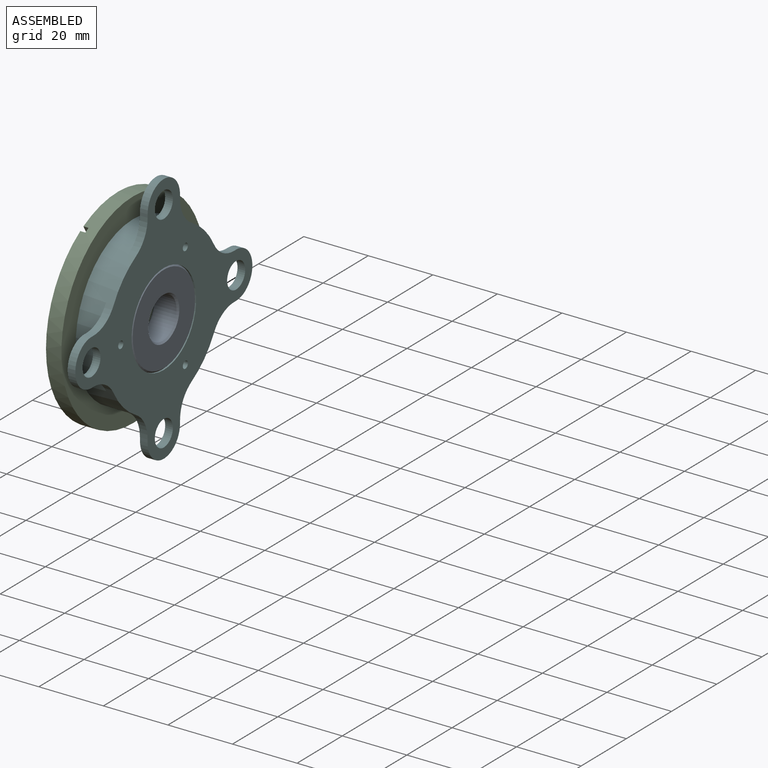
[diagram: assembled view]
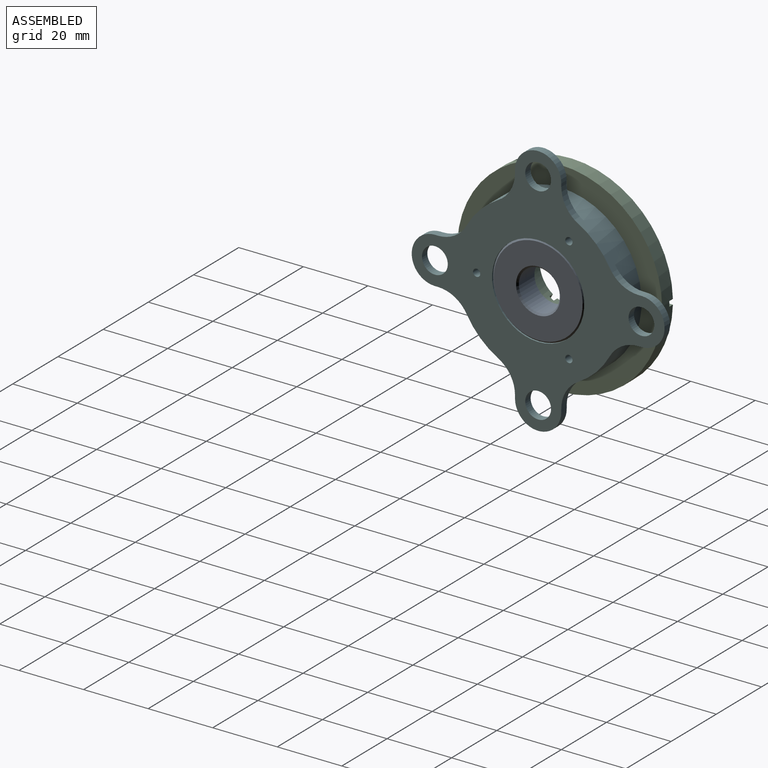
[diagram: assembled view, second angle]
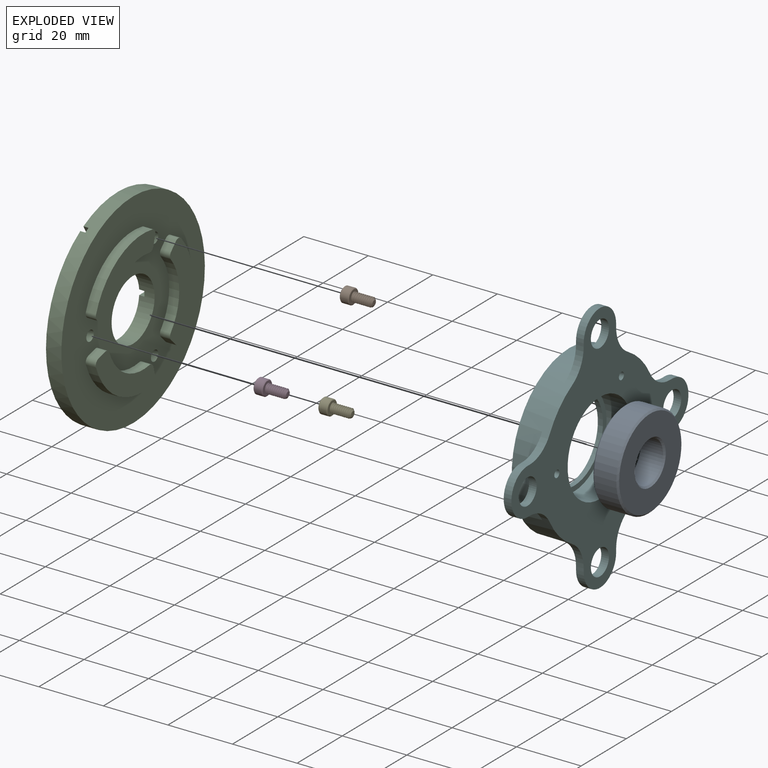
[diagram: exploded view]
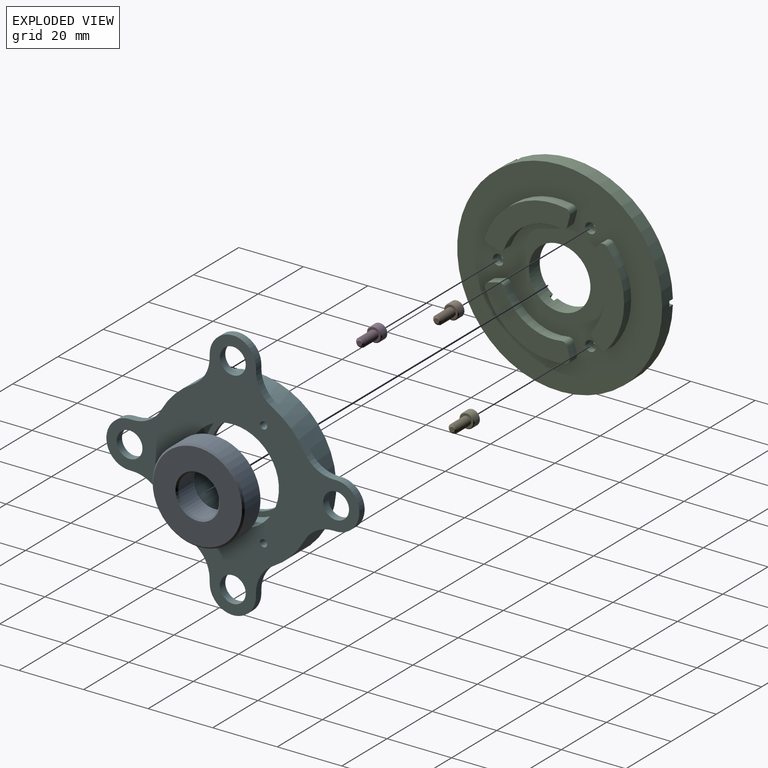
[diagram: exploded view, second angle]
ASSEMBLY  parts=6 mates=6
PART A: 8 faces, bbox 28.6x7.9x28.6 mm
  f0: cylinder r=6.35mm len=12.7mm, axis (0,1,0), area 276.2mm2, adj f4,f5
  f1: cylinder r=14.29mm len=28.58mm, axis (0,1,0), area 621.4mm2, adj f6,f7
  f2: plane 27.56x27.56mm, normal (0,-1,0), area 448.8mm2, adj f4,f6
  f3: plane 27.56x27.56mm, normal (0,1,0), area 448.8mm2, adj f5,f7
  f4: cone r=6.35mm half-angle=45deg, axis (0,-1,0), area 29.8mm2, adj f0,f2
  f5: cone r=6.86mm half-angle=45deg, axis (0,1,0), area 29.8mm2, adj f0,f3
  f6: cone r=13.78mm half-angle=45deg, axis (0,1,0), area 63.3mm2, adj f1,f2
  f7: cone r=14.29mm half-angle=45deg, axis (0,-1,0), area 63.3mm2, adj f1,f3
PART B: 24 faces, bbox 5.2x5.2x9.8 mm
  f0: cylinder r=1.42mm len=5.88mm, axis (0,0,1), area 8.9mm2, adj f1,f20,f21,f23
  f1: plane 4.43x4.43mm, normal (0,0,1), area 9mm2, adj f0,f2,f3,f20,f23
  f2: cylinder r=1.01mm len=6.17mm, axis (0,0,-1), area 3.7mm2, adj f1,f20,f21,f23
  f3: cone r=2.32mm half-angle=45deg, axis (0,0,-1), area 4.6mm2, adj f1,f4
  f4: cylinder r=2.32mm len=4.65mm, axis (0,0,1), area 34.8mm2, adj f3,f5
  f5: cone r=2.09mm half-angle=45deg, axis (0,0,1), area 4.6mm2, adj f4,f6
  f6: plane 4.39x4.39mm, normal (0,0,-1), area 7.8mm2, adj f5,f7,f15,f16,f17,f18,f19
  f7: cone r=1.37mm half-angle=45deg, axis (0,0,-1), area 0mm2, adj f6,f8
  f8: plane 2.31x1.71mm, normal (-0.5,-0.87,0), area 2.3mm2, adj f7,f9,f13,f14
  f9: plane 2.75x2.38mm, normal (0,0,-1), area 4.9mm2, adj f8,f10,f11,f12,f13,f14
  f10: plane 2.31x1.9mm, normal (1,0,0), area 2.3mm2, adj f9,f11,f14,f18
  f11: plane 2.31x1.71mm, normal (0.5,0.87,0), area 2.3mm2, adj f9,f10,f12,f17
  f12: plane 2.31x1.71mm, normal (-0.5,0.87,0), area 2.3mm2, adj f9,f11,f13,f16
  f13: plane 2.31x1.9mm, normal (-1,0,0), area 2.3mm2, adj f8,f9,f12,f15
  f14: plane 2.31x1.71mm, normal (0.5,-0.87,0), area 2.3mm2, adj f8,f9,f10,f19
  f15: cone r=1.37mm half-angle=45deg, axis (0,0,-1), area 0mm2, adj f6,f13
  f16: cone r=1.37mm half-angle=45deg, axis (0,0,-1), area 0mm2, adj f6,f12
  f17: cone r=1.37mm half-angle=45deg, axis (0,0,-1), area 0mm2, adj f6,f11
  f18: cone r=1.37mm half-angle=45deg, axis (0,0,-1), area 0mm2, adj f6,f10
  f19: cone r=1.37mm half-angle=45deg, axis (0,0,-1), area 0mm2, adj f6,f14
  f20: bspline ~6.59x3.29mm, area 34.6mm2, adj f0,f1,f2,f21
  f21: cone r=0.76mm half-angle=55deg, axis (0,0,-1), area 3.6mm2, adj f0,f2,f20,f22,f23
  f22: plane 1.51x1.51mm, normal (0,0,1), area 1.8mm2, adj f21
  f23: bspline ~6.8x3.29mm, area 34.6mm2, adj f0,f1,f2,f21
PART C: 51 faces, bbox 63.5x63.5x7.9 mm
  f0: plane 46.92x30.96mm, normal (0,0,1), area 901.1mm2, adj f2,f5,f16,f39,f47
  f1: plane 54.18x26.32mm, normal (0,0,1), area 901.1mm2, adj f2,f5,f36,f40,f44
  f2: cylinder r=31.75mm len=63.5mm, axis (0,0,-1), area 942.5mm2, adj f0,f1,f3,f4,f15,f16,f17,f36
  f3: plane 46.92x30.96mm, normal (0,0,1), area 901.1mm2, adj f2,f5,f15,f37,f50
  f4: plane 63.5x63.5mm, normal (0,0,-1), area 2306.9mm2, adj f2,f5,f6,f7,f8,f9,f11,f12
  f5: cylinder r=9.53mm len=19.05mm, axis (0,0,-1), area 277.5mm2, adj f0,f1,f3,f4,f15,f16,f17,f36
  f6: cylinder r=22.15mm len=28.81mm, axis (0,0,1), area 98mm2, adj f4,f10,f12,f14
  f7: plane 3.12x2.15mm, normal (0.71,-0.71,0), area 9.5mm2, adj f4,f10,f11,f12
  f8: cylinder r=15.95mm len=20.42mm, axis (0,0,1), area 69.2mm2, adj f4,f10,f11,f13
  f9: plane 3.12x2.15mm, normal (-0.71,-0.71,0), area 9.5mm2, adj f4,f10,f13,f14
  f10: plane 29.92x10.26mm, normal (0,0,-1), area 183.3mm2, adj f6,f7,f8,f9,f11,f12,f13,f14
  f11: cylinder r=1.59mm len=3.12mm, axis (0,0,1), area 7.3mm2, adj f4,f7,f8,f10
  f12: cylinder r=1.59mm len=3.12mm, axis (0,0,1), area 8.2mm2, adj f4,f6,f7,f10
  f13: cylinder r=1.59mm len=3.12mm, axis (0,0,1), area 7.3mm2, adj f4,f8,f9,f10
  f14: cylinder r=1.59mm len=3.12mm, axis (0,0,1), area 8.2mm2, adj f4,f6,f9,f10
  f15: plane 22.25x1.59mm, normal (1,0,0), area 35.3mm2, adj f2,f3,f5,f17
  f16: plane 22.25x1.59mm, normal (-1,0,0), area 35.3mm2, adj f0,f2,f5,f17
  f17: plane 22.26x1.59mm, normal (0,0,1), area 35.3mm2, adj f2,f5,f15,f16
  f18: cylinder r=22.15mm len=24.95mm, axis (0,0,1), area 98mm2, adj f4,f22,f29,f31
  f19: plane 3.12x2.93mm, normal (-0.97,-0.26,0), area 9.5mm2, adj f4,f22,f28,f29
  f20: cylinder r=15.95mm len=17.69mm, axis (0,0,1), area 69.2mm2, adj f4,f22,f28,f30
  f21: plane 3.12x2.93mm, normal (-0.26,0.97,0), area 9.5mm2, adj f4,f22,f30,f31
  f22: plane 26.34x17.68mm, normal (0,0,-1), area 183.3mm2, adj f18,f19,f20,f21,f28,f29,f30,f31
  f23: cylinder r=22.15mm len=24.95mm, axis (0,0,1), area 98mm2, adj f4,f27,f33,f35
  f24: plane 3.12x2.93mm, normal (0.26,0.97,0), area 9.5mm2, adj f4,f27,f32,f33
  f25: cylinder r=15.95mm len=17.69mm, axis (0,0,1), area 69.2mm2, adj f4,f27,f32,f34
  f26: plane 3.12x2.93mm, normal (0.97,-0.26,0), area 9.5mm2, adj f4,f27,f34,f35
  f27: plane 26.34x17.68mm, normal (0,0,-1), area 183.3mm2, adj f23,f24,f25,f26,f32,f33,f34,f35
  f28: cylinder r=1.59mm len=3.12mm, axis (0,0,1), area 7.3mm2, adj f4,f19,f20,f22
  f29: cylinder r=1.59mm len=3.12mm, axis (0,0,1), area 8.2mm2, adj f4,f18,f19,f22
  f30: cylinder r=1.59mm len=3.12mm, axis (0,0,1), area 7.3mm2, adj f4,f20,f21,f22
  f31: cylinder r=1.59mm len=3.12mm, axis (0,0,1), area 8.2mm2, adj f4,f18,f21,f22
  f32: cylinder r=1.59mm len=3.12mm, axis (0,0,1), area 7.3mm2, adj f4,f24,f25,f27
  f33: cylinder r=1.59mm len=3.12mm, axis (0,0,1), area 8.2mm2, adj f4,f23,f24,f27
  f34: cylinder r=1.59mm len=3.12mm, axis (0,0,1), area 7.3mm2, adj f4,f25,f26,f27
  f35: cylinder r=1.59mm len=3.12mm, axis (0,0,1), area 8.2mm2, adj f4,f23,f26,f27
  f36: plane 19.27x11.12mm, normal (-0.5,0.87,0), area 35.3mm2, adj f1,f2,f5,f38
  f37: plane 19.27x11.12mm, normal (0.5,-0.87,0), area 35.3mm2, adj f2,f3,f5,f38
  f38: plane 20.06x12.5mm, normal (0,0,1), area 35.3mm2, adj f2,f5,f36,f37
  f39: plane 19.27x11.12mm, normal (-0.5,-0.87,0), area 35.3mm2, adj f0,f2,f5,f41
  f40: plane 19.27x11.12mm, normal (0.5,0.87,0), area 35.3mm2, adj f1,f2,f5,f41
  f41: plane 20.06x12.5mm, normal (0,0,1), area 35.3mm2, adj f2,f5,f39,f40
  f42: cylinder r=1.63mm len=3.26mm, axis (0,0,1), area 19.7mm2, adj f4,f43
  f43: plane 5.56x5.56mm, normal (0,0,1), area 15.9mm2, adj f42,f44
  f44: cylinder r=2.78mm len=5.56mm, axis (0,0,1), area 49.7mm2, adj f1,f43
  f45: cylinder r=1.63mm len=3.26mm, axis (0,0,1), area 19.7mm2, adj f4,f46
  f46: plane 5.56x5.56mm, normal (0,0,1), area 15.9mm2, adj f45,f47
  f47: cylinder r=2.78mm len=5.56mm, axis (0,0,1), area 49.7mm2, adj f0,f46
  f48: cylinder r=1.63mm len=3.26mm, axis (0,0,1), area 19.7mm2, adj f4,f49
  f49: plane 5.56x5.56mm, normal (0,0,1), area 15.9mm2, adj f48,f50
  f50: cylinder r=2.78mm len=5.56mm, axis (0,0,1), area 49.7mm2, adj f3,f49
PART D: same geometry as B
PART E: same geometry as B
PART F: 64 faces, bbox 9.5x78.4x78.4 mm
  f0: plane 28.58x28.58mm, normal (-1,0,0), area 134.6mm2, adj f1,f5
  f1: cylinder r=12.7mm len=25.4mm, axis (-1,0,0), area 126.7mm2, adj f0,f2
  f2: plane 50.8x50.8mm, normal (1,0,0), area 944.5mm2, adj f1,f3,f6,f7,f8,f9,f11,f12
  f3: cylinder r=25.4mm len=50.8mm, axis (-1,0,0), area 1273.7mm2, adj f2,f4,f39,f41,f42,f46,f51,f56
  f4: plane 78.35x78.35mm, normal (-1,0,0), area 1951mm2, adj f3,f5,f33,f34,f35,f36,f37,f38
  f5: cylinder r=14.29mm len=28.58mm, axis (-1,0,0), area 712.6mm2, adj f0,f4
  f6: cylinder r=22.23mm len=28.92mm, axis (1,0,0), area 100mm2, adj f2,f10,f11,f14
  f7: plane 3.18x2.25mm, normal (0,0.71,0.71), area 10.1mm2, adj f2,f10,f11,f12
  f8: cylinder r=15.88mm len=20.32mm, axis (1,0,0), area 70mm2, adj f2,f10,f12,f13
  f9: plane 3.18x2.25mm, normal (0,0.71,-0.71), area 10.1mm2, adj f2,f10,f13,f14
  f10: plane 30.03x10.39mm, normal (1,0,0), area 187.9mm2, adj f6,f7,f8,f9,f11,f12,f13,f14
  f11: cylinder r=1.59mm len=3.18mm, axis (1,0,0), area 8.3mm2, adj f2,f6,f7,f10
  f12: cylinder r=1.59mm len=3.18mm, axis (1,0,0), area 7.5mm2, adj f2,f7,f8,f10
  f13: cylinder r=1.59mm len=3.18mm, axis (1,0,0), area 7.5mm2, adj f2,f8,f9,f10
  f14: cylinder r=1.59mm len=3.18mm, axis (1,0,0), area 8.3mm2, adj f2,f6,f9,f10
  f15: cylinder r=22.23mm len=25.05mm, axis (1,0,0), area 100mm2, adj f2,f19,f25,f28
  f16: plane 3.18x3.08mm, normal (0,0.26,-0.97), area 10.1mm2, adj f2,f19,f25,f26
  f17: cylinder r=15.88mm len=17.59mm, axis (1,0,0), area 70mm2, adj f2,f19,f26,f27
  f18: plane 3.18x3.08mm, normal (0,-0.97,-0.26), area 10.1mm2, adj f2,f19,f27,f28
  f19: plane 26.43x17.78mm, normal (1,0,0), area 187.9mm2, adj f15,f16,f17,f18,f25,f26,f27,f28
  f20: cylinder r=22.23mm len=25.05mm, axis (1,0,0), area 100mm2, adj f2,f24,f29,f32
  f21: plane 3.18x3.08mm, normal (0,-0.97,0.26), area 10.1mm2, adj f2,f24,f29,f30
  f22: cylinder r=15.88mm len=17.59mm, axis (1,0,0), area 70mm2, adj f2,f24,f30,f31
  f23: plane 3.18x3.08mm, normal (0,0.26,0.97), area 10.1mm2, adj f2,f24,f31,f32
  f24: plane 26.43x17.78mm, normal (1,0,0), area 187.9mm2, adj f20,f21,f22,f23,f29,f30,f31,f32
  f25: cylinder r=1.59mm len=3.18mm, axis (1,0,0), area 8.3mm2, adj f2,f15,f16,f19
  f26: cylinder r=1.59mm len=3.18mm, axis (1,0,0), area 7.5mm2, adj f2,f16,f17,f19
  f27: cylinder r=1.59mm len=3.18mm, axis (1,0,0), area 7.5mm2, adj f2,f17,f18,f19
  f28: cylinder r=1.59mm len=3.18mm, axis (1,0,0), area 8.3mm2, adj f2,f15,f18,f19
  f29: cylinder r=1.59mm len=3.18mm, axis (1,0,0), area 8.3mm2, adj f2,f20,f21,f24
  f30: cylinder r=1.59mm len=3.18mm, axis (1,0,0), area 7.5mm2, adj f2,f21,f22,f24
  f31: cylinder r=1.59mm len=3.18mm, axis (1,0,0), area 7.5mm2, adj f2,f22,f23,f24
  f32: cylinder r=1.59mm len=3.18mm, axis (1,0,0), area 8.3mm2, adj f2,f20,f23,f24
  f33: cylinder r=1.13mm len=9.53mm, axis (1,0,0), area 67.6mm2, adj f2,f4
  f34: cylinder r=1.13mm len=9.53mm, axis (1,0,0), area 67.6mm2, adj f2,f4
  f35: cylinder r=1.13mm len=9.53mm, axis (1,0,0), area 67.6mm2, adj f2,f4
  f36: cylinder r=7.17mm len=14.35mm, axis (-1,0,0), area 53.7mm2, adj f4,f37,f38,f39
  f37: plane 2.38x0.95mm, normal (0,0,1), area 2.3mm2, adj f4,f36,f39,f41
  f38: plane 2.38x0.95mm, normal (0,0,-1), area 2.3mm2, adj f4,f36,f39,f42
  f39: plane 24.76x17mm, normal (1,0,0), area 144.4mm2, adj f3,f36,f37,f38,f40,f41,f42
  f40: cylinder r=4mm len=8mm, axis (-1,0,0), area 59.8mm2, adj f4,f39
  f41: cylinder r=10.16mm len=8.87mm, axis (-1,0,0), area 25.7mm2, adj f3,f4,f37,f39
  f42: cylinder r=10.16mm len=8.87mm, axis (-1,0,0), area 25.7mm2, adj f3,f4,f38,f39
  f43: cylinder r=7.17mm len=14.35mm, axis (-1,0,0), area 53.7mm2, adj f4,f44,f45,f46
  f44: plane 2.38x0.95mm, normal (0,1,0), area 2.3mm2, adj f4,f43,f46,f58
  f45: plane 2.38x0.95mm, normal (0,-1,0), area 2.3mm2, adj f4,f43,f46,f59
  f46: plane 24.76x17mm, normal (1,0,0), area 144.4mm2, adj f3,f43,f44,f45,f47,f58,f59
  f47: cylinder r=4mm len=8mm, axis (-1,0,0), area 59.8mm2, adj f4,f46
  f48: cylinder r=7.17mm len=14.35mm, axis (-1,0,0), area 53.7mm2, adj f4,f49,f50,f51
  f49: plane 2.38x0.95mm, normal (0,0,-1), area 2.3mm2, adj f4,f48,f51,f60
  f50: plane 2.38x0.95mm, normal (0,0,1), area 2.3mm2, adj f4,f48,f51,f61
  f51: plane 24.76x17mm, normal (1,0,0), area 144.4mm2, adj f3,f48,f49,f50,f52,f60,f61
  f52: cylinder r=4mm len=8mm, axis (-1,0,0), area 59.8mm2, adj f4,f51
  f53: cylinder r=7.17mm len=14.35mm, axis (-1,0,0), area 53.7mm2, adj f4,f54,f55,f56
  f54: plane 2.38x0.95mm, normal (0,-1,0), area 2.3mm2, adj f4,f53,f56,f62
  f55: plane 2.38x0.95mm, normal (0,1,0), area 2.3mm2, adj f4,f53,f56,f63
  f56: plane 24.76x17mm, normal (1,0,0), area 144.4mm2, adj f3,f53,f54,f55,f57,f62,f63
  f57: cylinder r=4mm len=8mm, axis (-1,0,0), area 59.8mm2, adj f4,f56
  f58: cylinder r=10.16mm len=8.87mm, axis (-1,0,0), area 25.7mm2, adj f3,f4,f44,f46
  f59: cylinder r=10.16mm len=8.87mm, axis (-1,0,0), area 25.7mm2, adj f3,f4,f45,f46
  f60: cylinder r=10.16mm len=8.87mm, axis (-1,0,0), area 25.7mm2, adj f3,f4,f49,f51
  f61: cylinder r=10.16mm len=8.87mm, axis (-1,0,0), area 25.7mm2, adj f3,f4,f50,f51
  f62: cylinder r=10.16mm len=8.87mm, axis (-1,0,0), area 25.7mm2, adj f3,f4,f54,f56
  f63: cylinder r=10.16mm len=8.87mm, axis (-1,0,0), area 25.7mm2, adj f3,f4,f55,f56
PLACE A rot(axis=(0,0,-1),90deg) t=(-34.47,27.44,64.66)mm fixed
PLACE B rot(axis=(0,1,0),90deg) t=(-35.59,36.97,81.16)mm
PLACE C rot(axis=(0,-1,0),90deg) t=(-40.03,27.44,64.66)mm
PLACE D rot(axis=(0,1,0),90deg) t=(-35.59,8.39,64.66)mm
PLACE E rot(axis=(0,1,0),90deg) t=(-35.59,37.07,48.2)mm
PLACE F rot(axis=(0,-1,0),180deg) t=(-40.03,27.44,64.66)mm
MATE fastened B.f0 <-> C.f45  axis (1,0,0) through (-41.94,36.97,81.16)mm
MATE fastened A.f0 <-> F.f1  axis (-1,0,0) through (-38.44,27.44,64.66)mm
MATE fastened C.f42 <-> D.f0  axis (-1,0,0) through (-41.94,8.39,64.66)mm
MATE revolute C.f2 <-> F.f1  axis (1,0,0) through (-40.03,27.44,64.66)mm
MATE fastened E.f1 <-> C.f48  axis (1,0,0) through (-41.94,36.97,48.16)mm
MATE slider F.f34 <-> C.f45  axis (-1,0,0) through (-40.03,36.97,81.16)mm
